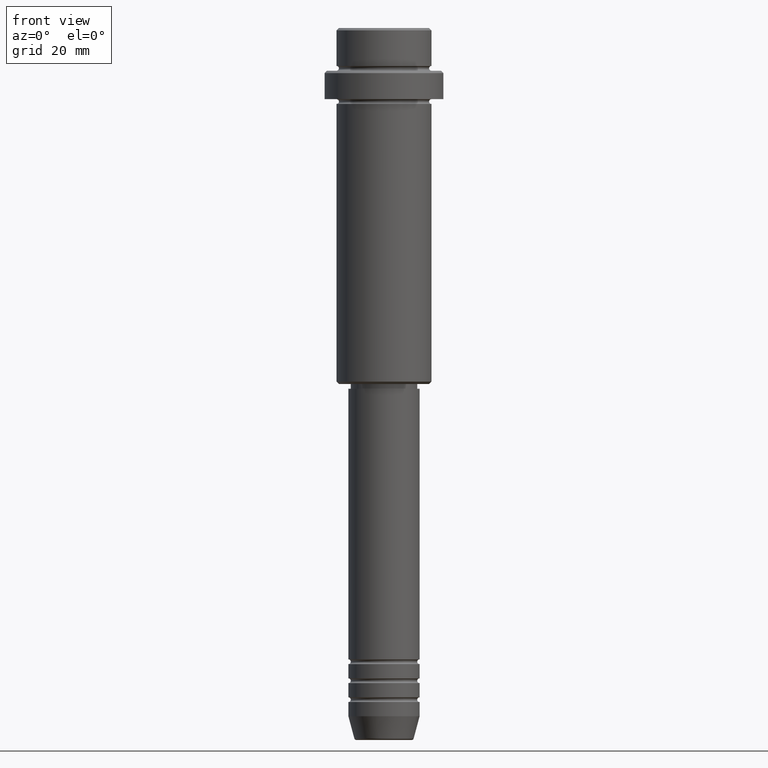
[diagram: clean part render]
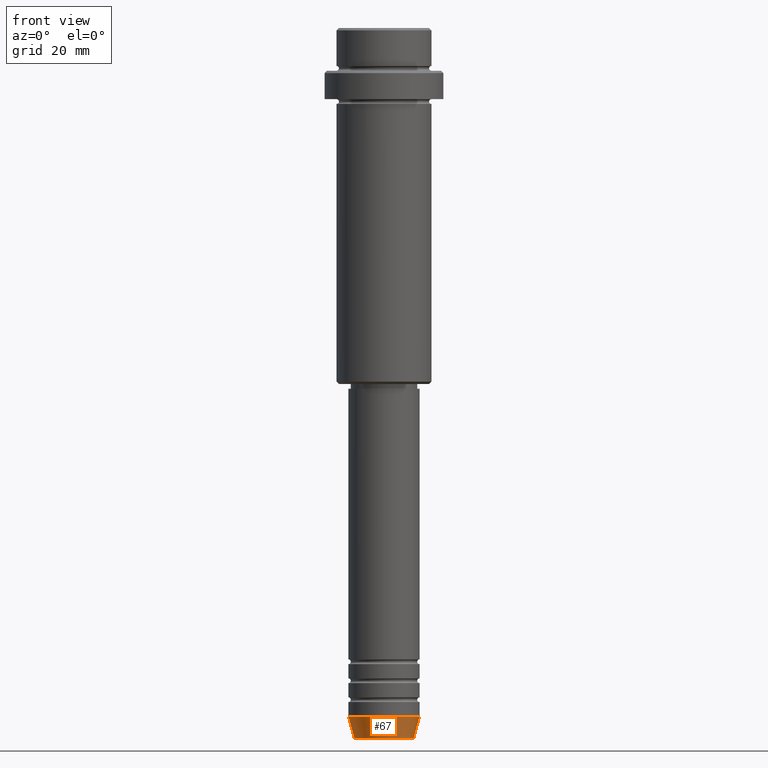
[diagram: same view with one face highlighted and labeled with its STEP entity id]
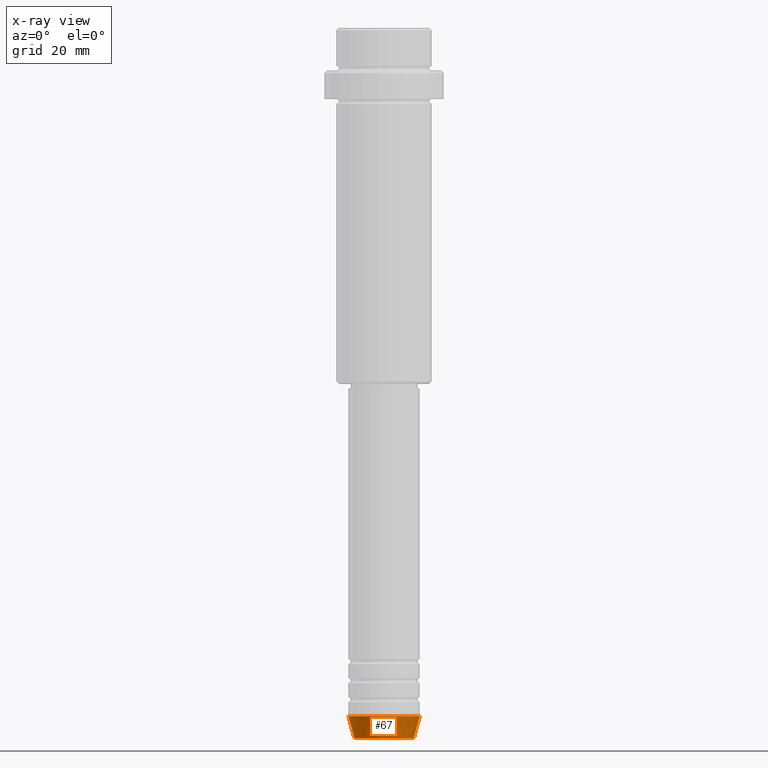
[diagram: x-ray of the same camera — body ghosted, the highlighted face saturated]
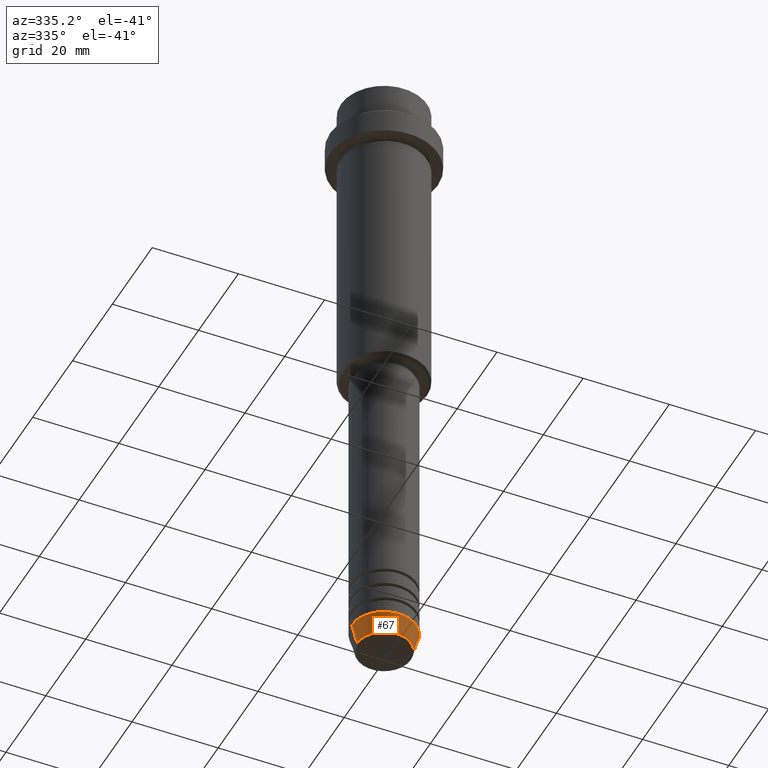
[diagram: same view with one face highlighted and labeled with its STEP entity id]
A machine part, front view. The second image highlights one B-rep face of the part: STEP entity #67.
The next image is the same camera in x-ray: the body ghosted, the highlighted face saturated — about 0% of this face is hidden behind the body in this view.
A second angle (auxiliary view) of the same face is appended — the face is thin or edge-on in the first view.
In plain terms, the highlighted conical surface has half-angle 15 deg.
Its self-contained STEP definition (entity closure, byte-faithful):
#44 = DIRECTION ( 'NONE',  ( 1.000000000000000000, 0.000000000000000000, 0.000000000000000000 ) ) ;
#62 = CARTESIAN_POINT ( 'NONE',  ( -7.500000000000000000, 9.184850993605147944E-16, -145.0000000000000000 ) ) ;
#67 = ADVANCED_FACE ( 'NONE', ( #922 ), #319, .T. ) ;
#101 = AXIS2_PLACEMENT_3D ( 'NONE', #1181, #190, #631 ) ;
#103 = CARTESIAN_POINT ( 'NONE',  ( -6.259553456999435106, 8.425296549405626528E-16, -149.6294095225512422 ) ) ;
#133 = DIRECTION ( 'NONE',  ( -0.000000000000000000, -0.000000000000000000, 1.000000000000000000 ) ) ;
#152 = EDGE_LOOP ( 'NONE', ( #1200, #502, #696, #1176 ) ) ;
#176 = CARTESIAN_POINT ( 'NONE',  ( 7.500000000000000000, 0.000000000000000000, -145.0000000000000000 ) ) ;
#180 = VERTEX_POINT ( 'NONE', #62 ) ;
#190 = DIRECTION ( 'NONE',  ( -0.000000000000000000, -0.000000000000000000, 1.000000000000000000 ) ) ;
#197 = EDGE_CURVE ( 'NONE', #904, #878, #1385, .T. ) ;
#223 = DIRECTION ( 'NONE',  ( -0.2588190451025227379, 3.169619151431788361E-17, 0.9659258262890676461 ) ) ;
#276 = CARTESIAN_POINT ( 'NONE',  ( 0.000000000000000000, 0.000000000000000000, -149.6294095225512422 ) ) ;
#319 = CONICAL_SURFACE ( 'NONE', #1101, 7.500000000000000000, 0.2617993877991514617 ) ;
#418 = VERTEX_POINT ( 'NONE', #103 ) ;
#447 = CARTESIAN_POINT ( 'NONE',  ( -7.500000000000000000, 9.184850993605147944E-16, -145.0000000000000000 ) ) ;
#502 = ORIENTED_EDGE ( 'NONE', *, *, #1405, .T. ) ;
#518 = AXIS2_PLACEMENT_3D ( 'NONE', #276, #1129, #44 ) ;
#519 = CIRCLE ( 'NONE', #518, 6.259553456999435106 ) ;
#608 = VECTOR ( 'NONE', #223, 1000.000000000000114 ) ;
#631 = DIRECTION ( 'NONE',  ( 1.000000000000000000, 0.000000000000000000, 0.000000000000000000 ) ) ;
#652 = CARTESIAN_POINT ( 'NONE',  ( 6.259553456999435106, 0.000000000000000000, -149.6294095225512422 ) ) ;
#696 = ORIENTED_EDGE ( 'NONE', *, *, #197, .T. ) ;
#721 = CIRCLE ( 'NONE', #101, 7.500000000000000000 ) ;
#810 = EDGE_CURVE ( 'NONE', #180, #878, #721, .T. ) ;
#878 = VERTEX_POINT ( 'NONE', #1108 ) ;
#892 = EDGE_CURVE ( 'NONE', #418, #180, #1209, .T. ) ;
#904 = VERTEX_POINT ( 'NONE', #652 ) ;
#922 = FACE_OUTER_BOUND ( 'NONE', #152, .T. ) ;
#1036 = CARTESIAN_POINT ( 'NONE',  ( 0.000000000000000000, 0.000000000000000000, -145.0000000000000000 ) ) ;
#1061 = DIRECTION ( 'NONE',  ( 0.2588190451025227379, 0.000000000000000000, 0.9659258262890676461 ) ) ;
#1101 = AXIS2_PLACEMENT_3D ( 'NONE', #1036, #133, #1242 ) ;
#1108 = CARTESIAN_POINT ( 'NONE',  ( 7.500000000000000000, 0.000000000000000000, -145.0000000000000000 ) ) ;
#1129 = DIRECTION ( 'NONE',  ( -0.000000000000000000, -0.000000000000000000, 1.000000000000000000 ) ) ;
#1176 = ORIENTED_EDGE ( 'NONE', *, *, #810, .F. ) ;
#1181 = CARTESIAN_POINT ( 'NONE',  ( 0.000000000000000000, 0.000000000000000000, -145.0000000000000000 ) ) ;
#1200 = ORIENTED_EDGE ( 'NONE', *, *, #892, .F. ) ;
#1209 = LINE ( 'NONE', #447, #608 ) ;
#1222 = VECTOR ( 'NONE', #1061, 1000.000000000000114 ) ;
#1242 = DIRECTION ( 'NONE',  ( 1.000000000000000000, 0.000000000000000000, 0.000000000000000000 ) ) ;
#1385 = LINE ( 'NONE', #176, #1222 ) ;
#1405 = EDGE_CURVE ( 'NONE', #418, #904, #519, .T. ) ;